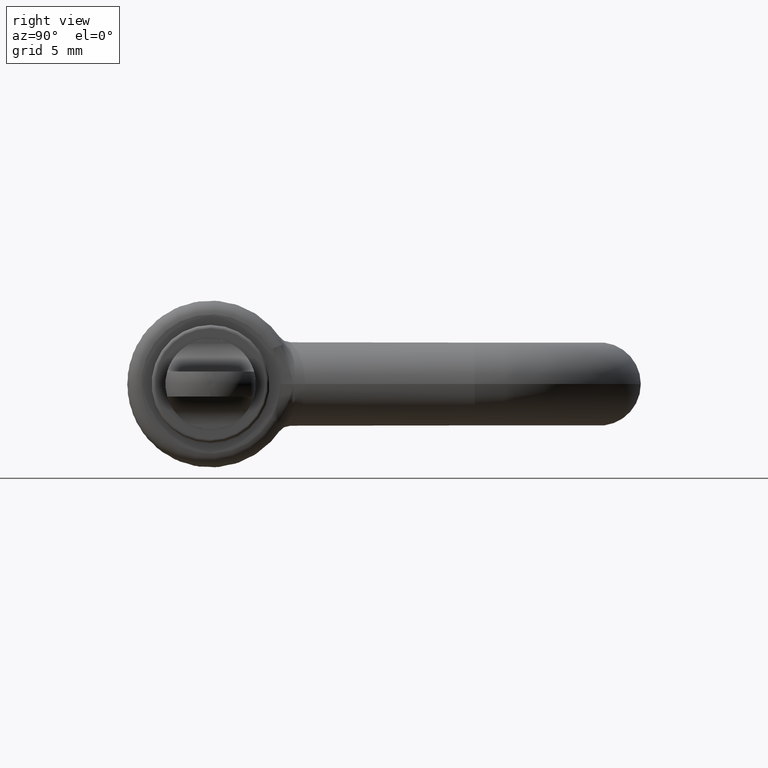
[diagram: clean part render]
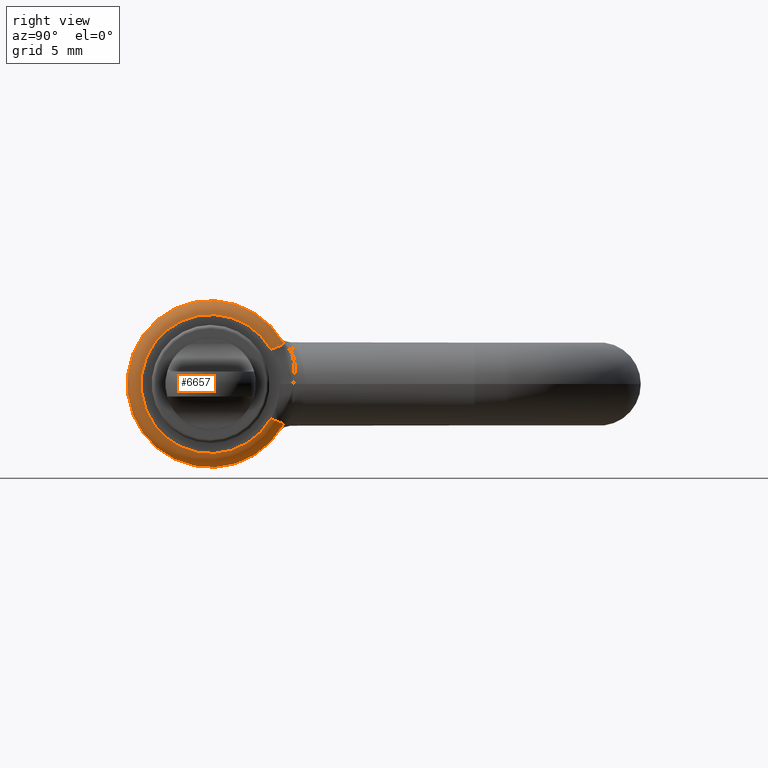
[diagram: same view with one face highlighted and labeled with its STEP entity id]
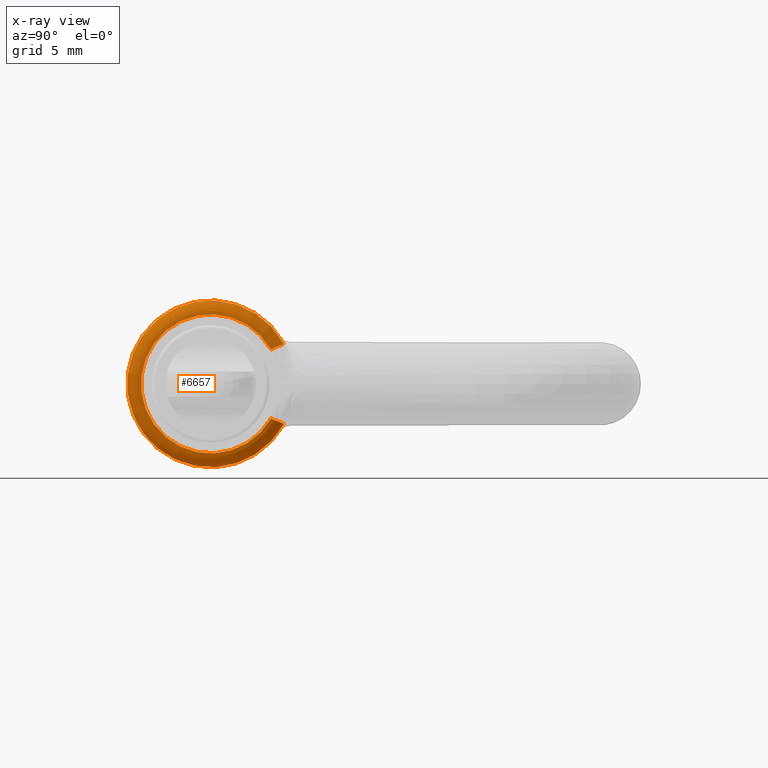
[diagram: x-ray of the same camera — body ghosted, the highlighted face saturated]
A machine part, right view. The second image highlights one B-rep face of the part: STEP entity #6657.
The next image is the same camera in x-ray: the body ghosted, the highlighted face saturated — about 0% of this face is hidden behind the body in this view.
In plain terms, the highlighted toroidal blend (fillet) surface has major radius 5 mm and minor (blend) radius 1 mm.
Its self-contained STEP definition (entity closure, byte-faithful):
#480 = EDGE_CURVE ( 'NONE', #8577, #14199, #4686, .T. ) ;
#517 = EDGE_CURVE ( 'NONE', #11897, #8577, #13784, .T. ) ;
#1101 = CARTESIAN_POINT ( 'NONE',  ( 11.00000000000000200, 11.21379645454133300, -2.969229955832362500 ) ) ;
#1158 = CARTESIAN_POINT ( 'NONE',  ( 11.00000000000000200, 11.21379645454133300, 2.969229955832362500 ) ) ;
#1495 = CARTESIAN_POINT ( 'NONE',  ( 11.00000000000000400, 6.000000000000001800, 0.0000000000000000000 ) ) ;
#1591 = CARTESIAN_POINT ( 'NONE',  ( 11.39064614680726900, 11.19559243225603900, -2.840052488242534400 ) ) ;
#2058 = ORIENTED_EDGE ( 'NONE', *, *, #9046, .F. ) ;
#2555 = CARTESIAN_POINT ( 'NONE',  ( 11.00000000000000200, 11.21379645454133300, -2.969229955832362500 ) ) ;
#2695 = CARTESIAN_POINT ( 'NONE',  ( 11.51340638063264000, 11.14018270878382900, -2.810775456981202200 ) ) ;
#2716 = CARTESIAN_POINT ( 'NONE',  ( 11.11153932499710900, 11.23794550432437100, 2.917135042019017200 ) ) ;
#2805 = DIRECTION ( 'NONE',  ( -2.891205793294677800E-016, 1.000000000000000000, 0.0000000000000000000 ) ) ;
#2811 = CARTESIAN_POINT ( 'NONE',  ( 11.39064614680725800, 11.19559243225605100, 2.840052488242524200 ) ) ;
#2905 = CARTESIAN_POINT ( 'NONE',  ( 11.65705311887436600, 11.04523259653187300, 2.773111487219887600 ) ) ;
#2940 = B_SPLINE_CURVE_WITH_KNOTS ( 'NONE', 3,
 ( #6946, #7036, #2716, #8322, #9422, #2811, #11670, #5058, #11483, #4865, #2905, #9658 ),
 .UNSPECIFIED., .F., .F.,
 ( 4, 2, 2, 2, 2, 4 ),
 ( 0.0000000000000000000, 0.2500000000000000000, 0.5000000000000000000, 0.6250000000000000000, 0.7500000000000000000, 1.000000000000000000 ),
 .UNSPECIFIED. ) ;
#2983 = VERTEX_POINT ( 'NONE', #13275 ) ;
#3052 = CARTESIAN_POINT ( 'NONE',  ( 11.97973885782175600, 10.55842265823617200, 2.584812217858939700 ) ) ;
#3139 = AXIS2_PLACEMENT_3D ( 'NONE', #3272, #5527, #11023 ) ;
#3223 = CARTESIAN_POINT ( 'NONE',  ( 11.88316915472871900, 10.78828885481409300, -2.680443811404649600 ) ) ;
#3272 = CARTESIAN_POINT ( 'NONE',  ( 12.00000000000000400, 6.000000000000001800, 0.0000000000000000000 ) ) ;
#3380 = CARTESIAN_POINT ( 'NONE',  ( 12.00000000000000400, 10.44405803431316200, -2.530867930113883400 ) ) ;
#3559 = DIRECTION ( 'NONE',  ( 1.000000000000000000, 1.652117596168387800E-016, 0.0000000000000000000 ) ) ;
#3586 = AXIS2_PLACEMENT_3D ( 'NONE', #1495, #3559, #5942 ) ;
#3660 = CARTESIAN_POINT ( 'NONE',  ( 11.65705311887436400, 11.04523259653186400, -2.773111487219894800 ) ) ;
#3706 = CARTESIAN_POINT ( 'NONE',  ( 11.60154114005038300, 11.08741815524881600, -2.788493922925777000 ) ) ;
#3760 = CARTESIAN_POINT ( 'NONE',  ( 11.70683690296260200, 10.99788711849581800, 2.755952014794479600 ) ) ;
#3823 = TOROIDAL_SURFACE ( 'NONE', #3586, 5.000000000000000900, 1.000000000000000000 ) ;
#4452 = CARTESIAN_POINT ( 'NONE',  ( 11.70683690296260200, 10.99788711849581600, -2.755952014794485800 ) ) ;
#4532 = FACE_OUTER_BOUND ( 'NONE', #11209, .T. ) ;
#4686 = CIRCLE ( 'NONE', #11240, 6.000000000000001800 ) ;
#4792 = CARTESIAN_POINT ( 'NONE',  ( 11.29650330594787300, 11.22455551114845900, -2.862623218867051300 ) ) ;
#4841 = CARTESIAN_POINT ( 'NONE',  ( 11.48321699562977100, 11.15601859587209400, -2.818070615082443700 ) ) ;
#4865 = CARTESIAN_POINT ( 'NONE',  ( 11.60154114005038100, 11.08741815524882700, 2.788493922925769500 ) ) ;
#4892 = CARTESIAN_POINT ( 'NONE',  ( 11.80640447113907300, 10.90319616242371700, 2.721633069943664800 ) ) ;
#5058 = CARTESIAN_POINT ( 'NONE',  ( 11.48321699562976200, 11.15601859587210700, 2.818070615082435700 ) ) ;
#5195 = B_SPLINE_CURVE_WITH_KNOTS ( 'NONE', 3,
 ( #7701, #3380, #11085, #3223, #13396, #4452 ),
 .UNSPECIFIED., .F., .F.,
 ( 4, 2, 4 ),
 ( 0.0000000000000000000, 0.5000000000000000000, 1.000000000000000000 ),
 .UNSPECIFIED. ) ;
#5527 = DIRECTION ( 'NONE',  ( 1.000000000000000000, 1.652117596168387800E-016, 0.0000000000000000000 ) ) ;
#5646 = CARTESIAN_POINT ( 'NONE',  ( 11.70683690296260200, 10.99788711849581600, -2.755952014794485800 ) ) ;
#5942 = DIRECTION ( 'NONE',  ( -1.652117596168387800E-016, 1.000000000000000000, 0.0000000000000000000 ) ) ;
#5992 = CARTESIAN_POINT ( 'NONE',  ( 11.05310397198671700, 11.23042856035718300, -2.940024937822931900 ) ) ;
#5993 = CARTESIAN_POINT ( 'NONE',  ( 11.88316915472872100, 10.78828885481408100, 2.680443811404648300 ) ) ;
#6002 = CARTESIAN_POINT ( 'NONE',  ( 11.00000000000000400, 6.000000000000001800, 0.0000000000000000000 ) ) ;
#6593 = ORIENTED_EDGE ( 'NONE', *, *, #9341, .F. ) ;
#6657 = ADVANCED_FACE ( 'NONE', ( #4532 ), #3823, .T. ) ;
#6946 = CARTESIAN_POINT ( 'NONE',  ( 11.00000000000000200, 11.21379645454133300, 2.969229955832362500 ) ) ;
#7036 = CARTESIAN_POINT ( 'NONE',  ( 11.05310397198671200, 11.23042856035718800, 2.940024937822928000 ) ) ;
#7062 = CARTESIAN_POINT ( 'NONE',  ( 11.70683690296260200, 10.99788711849581600, -2.755952014794485800 ) ) ;
#7170 = B_SPLINE_CURVE_WITH_KNOTS ( 'NONE', 3,
 ( #3760, #4892, #5993, #3052, #8680, #10818 ),
 .UNSPECIFIED., .F., .F.,
 ( 4, 2, 4 ),
 ( 0.0000000000000000000, 0.5000000000000000000, 1.000000000000000000 ),
 .UNSPECIFIED. ) ;
#7171 = DIRECTION ( 'NONE',  ( -1.000000000000000000, -1.652117596168387800E-016, -0.0000000000000000000 ) ) ;
#7701 = CARTESIAN_POINT ( 'NONE',  ( 12.00000000000000400, 10.34483037878444400, -2.474358296526969300 ) ) ;
#7801 = ORIENTED_EDGE ( 'NONE', *, *, #480, .F. ) ;
#8105 = CARTESIAN_POINT ( 'NONE',  ( 11.11153932499711900, 11.23794550432436500, -2.917135042019024300 ) ) ;
#8322 = CARTESIAN_POINT ( 'NONE',  ( 11.23323899197768800, 11.23500897972001900, 2.878434182541072900 ) ) ;
#8576 = VERTEX_POINT ( 'NONE', #8988 ) ;
#8577 = VERTEX_POINT ( 'NONE', #1101 ) ;
#8680 = CARTESIAN_POINT ( 'NONE',  ( 12.00000000000000400, 10.44405803431315500, 2.530867930113879900 ) ) ;
#8988 = CARTESIAN_POINT ( 'NONE',  ( 11.70683690296260200, 10.99788711849581800, 2.755952014794479600 ) ) ;
#9046 = EDGE_CURVE ( 'NONE', #8576, #13401, #7170, .T. ) ;
#9341 = EDGE_CURVE ( 'NONE', #14199, #8576, #2940, .T. ) ;
#9361 = CIRCLE ( 'NONE', #3139, 5.000000000000000900 ) ;
#9422 = CARTESIAN_POINT ( 'NONE',  ( 11.29650330594786000, 11.22455551114847700, 2.862623218867041500 ) ) ;
#9658 = CARTESIAN_POINT ( 'NONE',  ( 11.70683690296260200, 10.99788711849581800, 2.755952014794479600 ) ) ;
#9792 = EDGE_CURVE ( 'NONE', #13401, #2983, #9361, .T. ) ;
#10397 = CARTESIAN_POINT ( 'NONE',  ( 11.23323899197770200, 11.23500897972000200, -2.878434182541083500 ) ) ;
#10818 = CARTESIAN_POINT ( 'NONE',  ( 12.00000000000000400, 10.34483037878444400, 2.474358296526968400 ) ) ;
#11023 = DIRECTION ( 'NONE',  ( 0.0000000000000000000, 1.000000000000000000, 0.0000000000000000000 ) ) ;
#11085 = CARTESIAN_POINT ( 'NONE',  ( 11.97973885782174900, 10.55842265823618600, -2.584812217858939200 ) ) ;
#11209 = EDGE_LOOP ( 'NONE', ( #12394, #12423, #12686, #2058, #6593, #7801 ) ) ;
#11240 = AXIS2_PLACEMENT_3D ( 'NONE', #6002, #7171, #2805 ) ;
#11415 = CARTESIAN_POINT ( 'NONE',  ( 11.42183687871708000, 11.18372345760820100, -2.832709130713109600 ) ) ;
#11483 = CARTESIAN_POINT ( 'NONE',  ( 11.51340638063263800, 11.14018270878384000, 2.810775456981193400 ) ) ;
#11670 = CARTESIAN_POINT ( 'NONE',  ( 11.42183687871707300, 11.18372345760821500, 2.832709130713101200 ) ) ;
#11769 = CARTESIAN_POINT ( 'NONE',  ( 12.00000000000000400, 10.34483037878444400, 2.474358296526968400 ) ) ;
#11897 = VERTEX_POINT ( 'NONE', #5646 ) ;
#12074 = EDGE_CURVE ( 'NONE', #2983, #11897, #5195, .T. ) ;
#12394 = ORIENTED_EDGE ( 'NONE', *, *, #517, .F. ) ;
#12423 = ORIENTED_EDGE ( 'NONE', *, *, #12074, .F. ) ;
#12686 = ORIENTED_EDGE ( 'NONE', *, *, #9792, .F. ) ;
#13275 = CARTESIAN_POINT ( 'NONE',  ( 12.00000000000000400, 10.34483037878444400, -2.474358296526969300 ) ) ;
#13396 = CARTESIAN_POINT ( 'NONE',  ( 11.80640447113907100, 10.90319616242372000, -2.721633069943668400 ) ) ;
#13401 = VERTEX_POINT ( 'NONE', #11769 ) ;
#13784 = B_SPLINE_CURVE_WITH_KNOTS ( 'NONE', 3,
 ( #7062, #3660, #3706, #2695, #4841, #11415, #1591, #4792, #10397, #8105, #5992, #2555 ),
 .UNSPECIFIED., .F., .F.,
 ( 4, 2, 2, 2, 2, 4 ),
 ( 0.0000000000000000000, 0.2500000000000000000, 0.3750000000000000000, 0.5000000000000000000, 0.7500000000000000000, 1.000000000000000000 ),
 .UNSPECIFIED. ) ;
#14199 = VERTEX_POINT ( 'NONE', #1158 ) ;